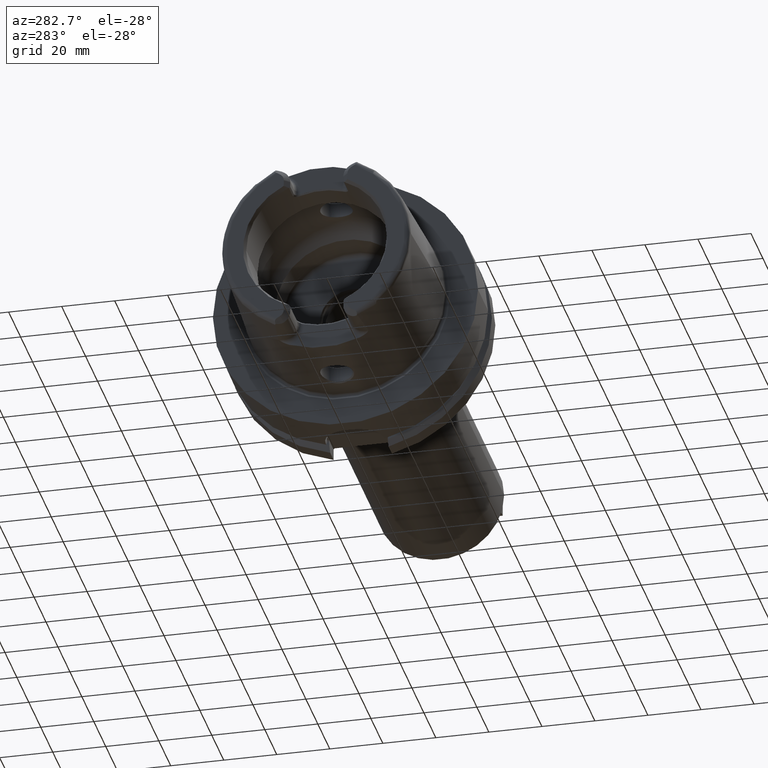
[diagram: clean part render]
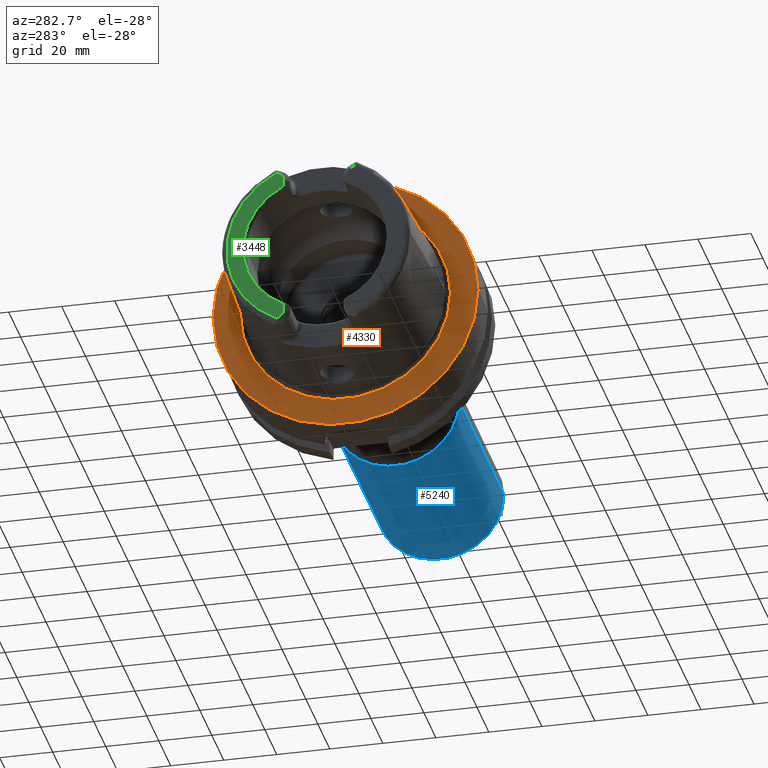
[diagram: same view with three faces highlighted in distinct colors, each labeled with its STEP entity id]
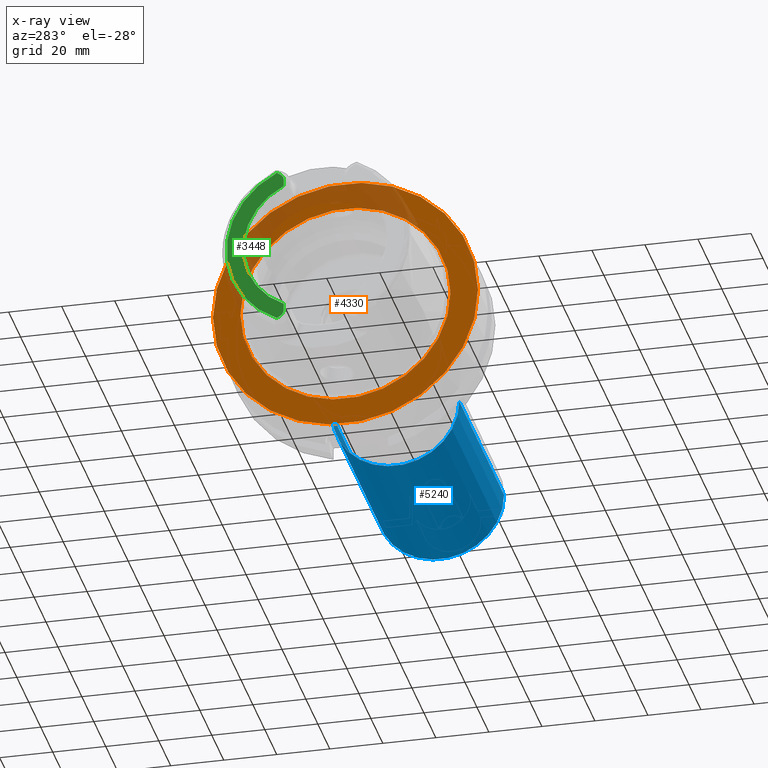
[diagram: x-ray of the same camera — body ghosted, the three highlighted faces saturated]
A machine part, auxiliary view with three faces highlighted in distinct colors.
The next image is the same camera in x-ray (body ghosted, the three faces saturated) — at least one of them is partly hidden behind the body in this view.
Their STEP definitions:

[orange] entity #4330 — the highlighted planar face has unit normal (1, 0, 0).
#905=CARTESIAN_POINT('',(2.842170943040E-14,0.E0,0.E0));
#906=DIRECTION('',(1.E0,0.E0,0.E0));
#907=DIRECTION('',(0.E0,1.E0,0.E0));
#908=AXIS2_PLACEMENT_3D('',#905,#906,#907);
#910=CARTESIAN_POINT('',(2.842170943040E-14,0.E0,0.E0));
#911=DIRECTION('',(-1.E0,0.E0,0.E0));
#912=DIRECTION('',(0.E0,1.E0,0.E0));
#913=AXIS2_PLACEMENT_3D('',#910,#911,#912);
#915=CARTESIAN_POINT('',(0.E0,0.E0,0.E0));
#916=DIRECTION('',(-1.E0,0.E0,0.E0));
#917=DIRECTION('',(0.E0,-1.E0,0.E0));
#918=AXIS2_PLACEMENT_3D('',#915,#916,#917);
#920=CARTESIAN_POINT('',(0.E0,0.E0,0.E0));
#921=DIRECTION('',(-1.E0,0.E0,0.E0));
#922=DIRECTION('',(0.E0,1.E0,0.E0));
#923=AXIS2_PLACEMENT_3D('',#920,#921,#922);
#2847=CARTESIAN_POINT('',(2.842170943040E-14,5.E1,0.E0));
#2848=CARTESIAN_POINT('',(2.842170943040E-14,-5.E1,0.E0));
#2849=VERTEX_POINT('',#2847);
#2850=VERTEX_POINT('',#2848);
#2875=CARTESIAN_POINT('',(0.E0,-3.963225E1,0.E0));
#2876=VERTEX_POINT('',#2875);
#2877=CARTESIAN_POINT('',(0.E0,3.963225E1,0.E0));
#2878=VERTEX_POINT('',#2877);
#4315=CARTESIAN_POINT('',(0.E0,0.E0,0.E0));
#4316=DIRECTION('',(1.E0,0.E0,0.E0));
#4317=DIRECTION('',(0.E0,-1.E0,0.E0));
#4318=AXIS2_PLACEMENT_3D('',#4315,#4316,#4317);
#4319=PLANE('',#4318);
#4321=ORIENTED_EDGE('',*,*,#4320,.T.);
#4323=ORIENTED_EDGE('',*,*,#4322,.F.);
#4324=EDGE_LOOP('',(#4321,#4323));
#4325=FACE_OUTER_BOUND('',#4324,.F.);
#4326=ORIENTED_EDGE('',*,*,#4310,.T.);
#4327=ORIENTED_EDGE('',*,*,#4294,.T.);
#4328=EDGE_LOOP('',(#4326,#4327));
#4329=FACE_BOUND('',#4328,.F.);
#4330=ADVANCED_FACE('',(#4325,#4329),#4319,.F.);
#909=CIRCLE('',#908,5.E1);
#914=CIRCLE('',#913,5.E1);
#919=CIRCLE('',#918,3.963225E1);
#924=CIRCLE('',#923,3.963225E1);
#4294=EDGE_CURVE('',#2878,#2876,#924,.T.);
#4310=EDGE_CURVE('',#2876,#2878,#919,.T.);
#4320=EDGE_CURVE('',#2849,#2850,#909,.T.);
#4322=EDGE_CURVE('',#2849,#2850,#914,.T.);

[blue] entity #5240 — the highlighted cylindrical surface (partial cylindrical patch) has radius 24 mm, axis along (1, 0, 0).
#1840=CARTESIAN_POINT('',(8.4E1,0.E0,0.E0));
#1841=DIRECTION('',(1.E0,0.E0,0.E0));
#1842=DIRECTION('',(0.E0,-1.E0,0.E0));
#1843=AXIS2_PLACEMENT_3D('',#1840,#1841,#1842);
#1845=DIRECTION('',(-1.E0,0.E0,0.E0));
#1846=VECTOR('',#1845,7.5E1);
#1847=CARTESIAN_POINT('',(1.59E2,-2.4E1,6.031506983574E-14));
#1848=LINE('',#1847,#1846);
#1849=CARTESIAN_POINT('',(1.59E2,0.E0,0.E0));
#1850=DIRECTION('',(-1.E0,0.E0,0.E0));
#1851=DIRECTION('',(0.E0,1.E0,0.E0));
#1852=AXIS2_PLACEMENT_3D('',#1849,#1850,#1851);
#1854=DIRECTION('',(-1.E0,0.E0,0.E0));
#1855=VECTOR('',#1854,7.5E1);
#1856=CARTESIAN_POINT('',(1.59E2,2.4E1,-6.637892843343E-14));
#1857=LINE('',#1856,#1855);
#3283=CARTESIAN_POINT('',(1.59E2,2.4E1,0.E0));
#3284=CARTESIAN_POINT('',(1.59E2,-2.4E1,0.E0));
#3285=VERTEX_POINT('',#3283);
#3286=VERTEX_POINT('',#3284);
#3341=CARTESIAN_POINT('',(8.4E1,2.4E1,0.E0));
#3342=CARTESIAN_POINT('',(8.4E1,-2.4E1,0.E0));
#3343=VERTEX_POINT('',#3341);
#3344=VERTEX_POINT('',#3342);
#5226=CARTESIAN_POINT('',(2.15E1,0.E0,0.E0));
#5227=DIRECTION('',(1.E0,0.E0,0.E0));
#5228=DIRECTION('',(0.E0,-1.E0,0.E0));
#5229=AXIS2_PLACEMENT_3D('',#5226,#5227,#5228);
#5230=CYLINDRICAL_SURFACE('',#5229,2.4E1);
#5231=ORIENTED_EDGE('',*,*,#5220,.F.);
#5233=ORIENTED_EDGE('',*,*,#5232,.F.);
#5235=ORIENTED_EDGE('',*,*,#5234,.F.);
#5237=ORIENTED_EDGE('',*,*,#5236,.T.);
#5238=EDGE_LOOP('',(#5231,#5233,#5235,#5237));
#5239=FACE_OUTER_BOUND('',#5238,.F.);
#5240=ADVANCED_FACE('',(#5239),#5230,.T.);
#1844=CIRCLE('',#1843,2.4E1);
#1853=CIRCLE('',#1852,2.4E1);
#5220=EDGE_CURVE('',#3344,#3343,#1844,.T.);
#5232=EDGE_CURVE('',#3286,#3344,#1848,.T.);
#5234=EDGE_CURVE('',#3285,#3286,#1853,.T.);
#5236=EDGE_CURVE('',#3285,#3343,#1857,.T.);

[green] entity #3448 — the highlighted planar face has unit normal (1, 0, 0).
#100=DIRECTION('',(0.E0,0.E0,1.E0));
#101=VECTOR('',#100,2.370180025047E0);
#102=CARTESIAN_POINT('',(-5.E1,1.201E1,-2.696E1));
#103=LINE('',#102,#101);
#104=CARTESIAN_POINT('',(-5.E1,1.501E1,-2.696E1));
#105=DIRECTION('',(1.E0,0.E0,0.E0));
#106=DIRECTION('',(0.E0,-1.E0,0.E0));
#107=AXIS2_PLACEMENT_3D('',#104,#105,#106);
#109=DIRECTION('',(0.E0,-8.533905854017E-1,5.212720103245E-1));
#110=VECTOR('',#109,1.392150953463E0);
#111=CARTESIAN_POINT('',(-5.E1,1.463423248617E1,-3.024586108239E1));
#112=LINE('',#111,#110);
#113=DIRECTION('',(0.E0,-8.533905854017E-1,-5.212720103245E-1));
#114=VECTOR('',#113,1.392150953463E0);
#115=CARTESIAN_POINT('',(-5.E1,1.463423248617E1,3.024586108239E1));
#116=LINE('',#115,#114);
#117=CARTESIAN_POINT('',(-5.E1,1.501E1,2.696E1));
#118=DIRECTION('',(-1.E0,0.E0,0.E0));
#119=DIRECTION('',(0.E0,-1.E0,0.E0));
#120=AXIS2_PLACEMENT_3D('',#117,#118,#119);
#122=DIRECTION('',(0.E0,0.E0,1.E0));
#123=VECTOR('',#122,2.370180025047E0);
#124=CARTESIAN_POINT('',(-5.E1,1.201E1,2.458981997495E1));
#125=LINE('',#124,#123);
#157=CARTESIAN_POINT('',(-5.E1,0.E0,0.E0));
#158=DIRECTION('',(1.E0,0.E0,0.E0));
#159=DIRECTION('',(0.E0,4.388653384185E-1,-8.985528447091E-1));
#160=AXIS2_PLACEMENT_3D('',#157,#158,#159);
#340=CARTESIAN_POINT('',(-5.E1,0.E0,0.E0));
#341=DIRECTION('',(-1.E0,0.E0,0.E0));
#342=DIRECTION('',(0.E0,4.355401503799E-1,9.001693048572E-1));
#343=AXIS2_PLACEMENT_3D('',#340,#341,#342);
#2937=CARTESIAN_POINT('',(-5.E1,1.201E1,2.458981997495E1));
#2938=CARTESIAN_POINT('',(-5.E1,1.201E1,2.696E1));
#2939=VERTEX_POINT('',#2937);
#2940=VERTEX_POINT('',#2938);
#2941=CARTESIAN_POINT('',(-5.E1,1.344618396903E1,2.952017175621E1));
#2942=VERTEX_POINT('',#2941);
#2943=CARTESIAN_POINT('',(-5.E1,1.463423248617E1,3.024586108239E1));
#2944=VERTEX_POINT('',#2943);
#3028=CARTESIAN_POINT('',(-5.E1,1.201E1,-2.696E1));
#3029=CARTESIAN_POINT('',(-5.E1,1.201E1,-2.458981997495E1));
#3030=VERTEX_POINT('',#3028);
#3031=VERTEX_POINT('',#3029);
#3032=CARTESIAN_POINT('',(-5.E1,1.344618396903E1,-2.952017175621E1));
#3033=VERTEX_POINT('',#3032);
#3034=CARTESIAN_POINT('',(-5.E1,1.463423248617E1,-3.024586108239E1));
#3035=VERTEX_POINT('',#3034);
#3425=CARTESIAN_POINT('',(-5.E1,0.E0,0.E0));
#3426=DIRECTION('',(1.E0,0.E0,0.E0));
#3427=DIRECTION('',(0.E0,-1.E0,0.E0));
#3428=AXIS2_PLACEMENT_3D('',#3425,#3426,#3427);
#3429=PLANE('',#3428);
#3431=ORIENTED_EDGE('',*,*,#3430,.F.);
#3433=ORIENTED_EDGE('',*,*,#3432,.T.);
#3435=ORIENTED_EDGE('',*,*,#3434,.F.);
#3437=ORIENTED_EDGE('',*,*,#3436,.F.);
#3439=ORIENTED_EDGE('',*,*,#3438,.T.);
#3441=ORIENTED_EDGE('',*,*,#3440,.F.);
#3443=ORIENTED_EDGE('',*,*,#3442,.F.);
#3445=ORIENTED_EDGE('',*,*,#3444,.F.);
#3446=EDGE_LOOP('',(#3431,#3433,#3435,#3437,#3439,#3441,#3443,#3445));
#3447=FACE_OUTER_BOUND('',#3446,.F.);
#3448=ADVANCED_FACE('',(#3447),#3429,.F.);
#108=CIRCLE('',#107,3.E0);
#121=CIRCLE('',#120,3.E0);
#161=CIRCLE('',#160,2.736602540378E1);
#344=CIRCLE('',#343,3.360019156306E1);
#3430=EDGE_CURVE('',#3030,#3031,#103,.T.);
#3432=EDGE_CURVE('',#3030,#3033,#108,.T.);
#3434=EDGE_CURVE('',#3035,#3033,#112,.T.);
#3436=EDGE_CURVE('',#2944,#3035,#344,.T.);
#3438=EDGE_CURVE('',#2944,#2942,#116,.T.);
#3440=EDGE_CURVE('',#2940,#2942,#121,.T.);
#3442=EDGE_CURVE('',#2939,#2940,#125,.T.);
#3444=EDGE_CURVE('',#3031,#2939,#161,.T.);